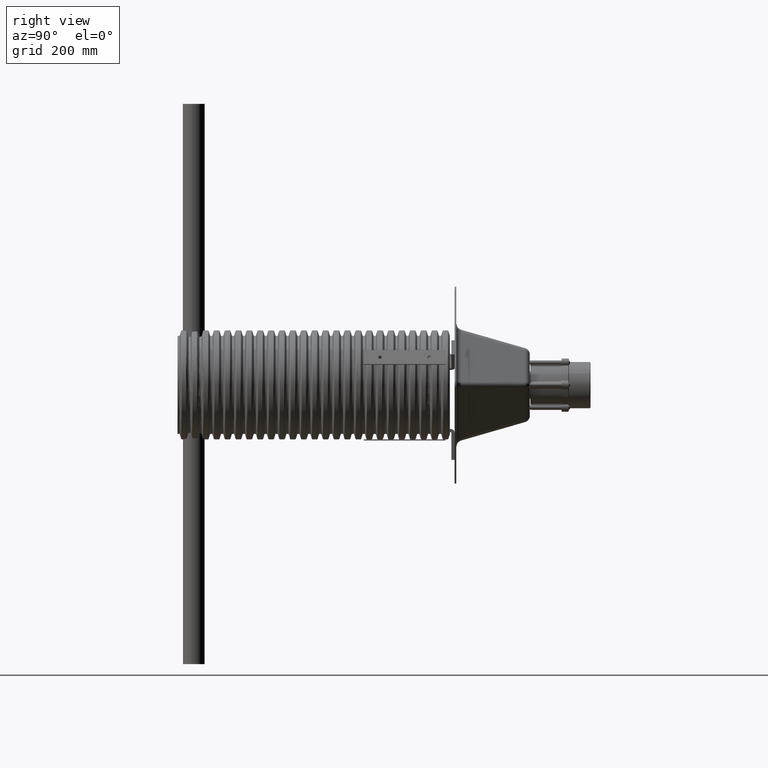
[diagram: clean part render]
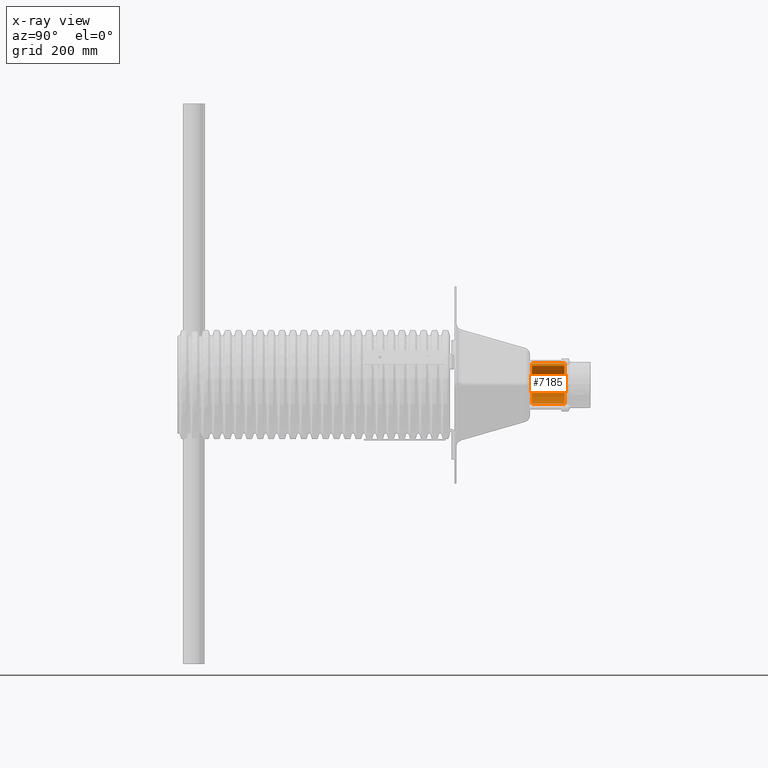
[diagram: x-ray — body ghosted, one internal face saturated and labeled with its STEP entity id]
A machine part, right view, then the same camera in x-ray: the body is ghosted and one INTERNAL B-rep face — a face not visible from any outside direction — is saturated and labeled: STEP entity #7185.
In plain terms, the highlighted cylindrical surface (edge-blend (fillet) strip) has radius 39.5 mm, axis along (-0, 1, 0).
Its self-contained STEP definition (entity closure, byte-faithful):
#359 = CARTESIAN_POINT ( 'NONE',  ( 39.50000000000380140, -3.576132955624890887E-12, 60.00000000000000000 ) ) ;
#2488 = EDGE_CURVE ( 'NONE', #10208, #32639, #38617, .T. ) ;
#2743 = VERTEX_POINT ( 'NONE', #15346 ) ;
#2840 = EDGE_CURVE ( 'NONE', #27915, #32639, #8318, .T. ) ;
#5111 = DIRECTION ( 'NONE',  ( 0.0000000000000000000, 0.0000000000000000000, 1.000000000000000000 ) ) ;
#7111 = ORIENTED_EDGE ( 'NONE', *, *, #17604, .F. ) ;
#7185 = ADVANCED_FACE ( 'NONE', ( #19262 ), #45501, .F. ) ;
#8036 = CARTESIAN_POINT ( 'NONE',  ( -39.49999999999619860, -3.580970310481523418E-12, 60.00000000000000000 ) ) ;
#8318 = CIRCLE ( 'NONE', #22721, 39.50000000000000000 ) ;
#8638 = DIRECTION ( 'NONE',  ( -0.0000000000000000000, -0.0000000000000000000, -1.000000000000000000 ) ) ;
#10208 = VERTEX_POINT ( 'NONE', #8036 ) ;
#14617 = DIRECTION ( 'NONE',  ( -0.0000000000000000000, -0.0000000000000000000, -1.000000000000000000 ) ) ;
#15346 = CARTESIAN_POINT ( 'NONE',  ( 39.50000000000380140, -3.576132955624890887E-12, 60.00000000000000000 ) ) ;
#16627 = ORIENTED_EDGE ( 'NONE', *, *, #20810, .T. ) ;
#17283 = CARTESIAN_POINT ( 'NONE',  ( -39.49999999999619860, -3.580970310481523418E-12, 0.0000000000000000000 ) ) ;
#17604 = EDGE_CURVE ( 'NONE', #2743, #27915, #20849, .T. ) ;
#17640 = CARTESIAN_POINT ( 'NONE',  ( 3.805216029895878829E-12, -3.580970310481523418E-12, 60.00000000000000000 ) ) ;
#19262 = FACE_OUTER_BOUND ( 'NONE', #35874, .T. ) ;
#20810 = EDGE_CURVE ( 'NONE', #2743, #10208, #24534, .T. ) ;
#20849 = LINE ( 'NONE', #359, #30353 ) ;
#21214 = DIRECTION ( 'NONE',  ( 1.000000000000000000, 0.0000000000000000000, 0.0000000000000000000 ) ) ;
#22721 = AXIS2_PLACEMENT_3D ( 'NONE', #26597, #5111, #30182 ) ;
#23056 = ORIENTED_EDGE ( 'NONE', *, *, #2840, .F. ) ;
#23788 = CARTESIAN_POINT ( 'NONE',  ( -39.49999999999619860, -3.580970310481523418E-12, 60.00000000000000000 ) ) ;
#24534 = CIRCLE ( 'NONE', #43326, 39.50000000000000000 ) ;
#26597 = CARTESIAN_POINT ( 'NONE',  ( 3.805216029895878829E-12, -3.580970310481523418E-12, 0.0000000000000000000 ) ) ;
#27915 = VERTEX_POINT ( 'NONE', #32733 ) ;
#29125 = VECTOR ( 'NONE', #38179, 1000.000000000000000 ) ;
#29786 = AXIS2_PLACEMENT_3D ( 'NONE', #44311, #8638, #40734 ) ;
#30182 = DIRECTION ( 'NONE',  ( 1.000000000000000000, 0.0000000000000000000, 0.0000000000000000000 ) ) ;
#30353 = VECTOR ( 'NONE', #14617, 1000.000000000000000 ) ;
#32639 = VERTEX_POINT ( 'NONE', #17283 ) ;
#32733 = CARTESIAN_POINT ( 'NONE',  ( 39.50000000000380140, -3.576132955624890887E-12, 0.0000000000000000000 ) ) ;
#35874 = EDGE_LOOP ( 'NONE', ( #7111, #16627, #44952, #23056 ) ) ;
#38179 = DIRECTION ( 'NONE',  ( -0.0000000000000000000, -0.0000000000000000000, -1.000000000000000000 ) ) ;
#38617 = LINE ( 'NONE', #23788, #29125 ) ;
#40734 = DIRECTION ( 'NONE',  ( -1.000000000000000000, 0.0000000000000000000, 0.0000000000000000000 ) ) ;
#42611 = DIRECTION ( 'NONE',  ( 0.0000000000000000000, 0.0000000000000000000, 1.000000000000000000 ) ) ;
#43326 = AXIS2_PLACEMENT_3D ( 'NONE', #17640, #42611, #21214 ) ;
#44311 = CARTESIAN_POINT ( 'NONE',  ( 3.805216029895878829E-12, -3.580970310481523418E-12, 60.00000000000000000 ) ) ;
#44952 = ORIENTED_EDGE ( 'NONE', *, *, #2488, .T. ) ;
#45501 = CYLINDRICAL_SURFACE ( 'NONE', #29786, 39.50000000000000000 ) ;